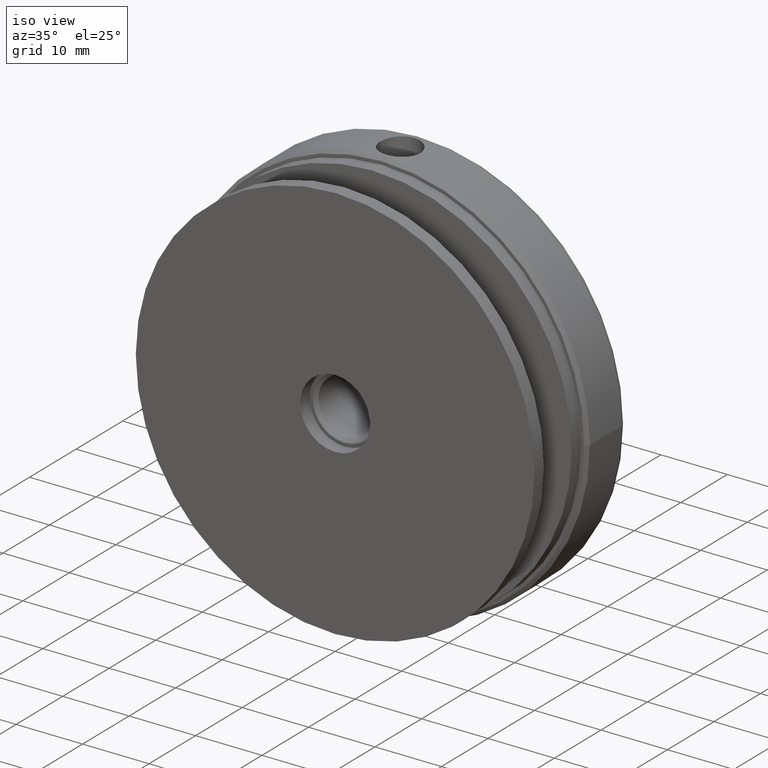
[diagram: clean part render]
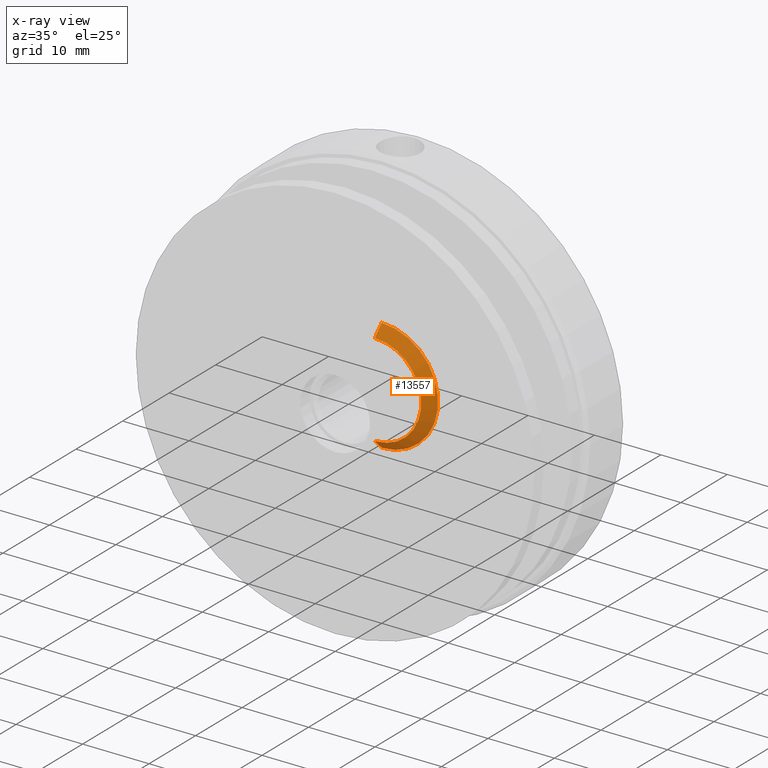
[diagram: x-ray — body ghosted, one internal face saturated and labeled with its STEP entity id]
A machine part, iso view, then the same camera in x-ray: the body is ghosted and one INTERNAL B-rep face — a face not visible from any outside direction — is saturated and labeled: STEP entity #13557.
In plain terms, the highlighted conical surface has half-angle 45 deg.
Its self-contained STEP definition (entity closure, byte-faithful):
#634 = AXIS2_PLACEMENT_3D ( 'NONE', #9433, #13001, #12940 ) ;
#799 = VERTEX_POINT ( 'NONE', #10715 ) ;
#1227 = ORIENTED_EDGE ( 'NONE', *, *, #12372, .T. ) ;
#2009 = ORIENTED_EDGE ( 'NONE', *, *, #6282, .F. ) ;
#2042 = DIRECTION ( 'NONE',  ( -0.000000000000000000, -1.000000000000000000, -0.000000000000000000 ) ) ;
#3079 = CIRCLE ( 'NONE', #634, 7.000000000000000000 ) ;
#3124 = LINE ( 'NONE', #7248, #12346 ) ;
#3462 = LINE ( 'NONE', #7723, #14751 ) ;
#3567 = AXIS2_PLACEMENT_3D ( 'NONE', #7913, #2042, #4232 ) ;
#3739 = DIRECTION ( 'NONE',  ( 8.659560562354922997E-17, -0.7071067811865483499, 0.7071067811865466846 ) ) ;
#4232 = DIRECTION ( 'NONE',  ( 0.000000000000000000, 0.000000000000000000, -1.000000000000000000 ) ) ;
#5332 = CIRCLE ( 'NONE', #11346, 8.499999999999992895 ) ;
#5810 = DIRECTION ( 'NONE',  ( 0.000000000000000000, 0.000000000000000000, 1.000000000000000000 ) ) ;
#6282 = EDGE_CURVE ( 'NONE', #6785, #11514, #3079, .T. ) ;
#6622 = DIRECTION ( 'NONE',  ( 0.000000000000000000, -0.7071067811865483499, -0.7071067811865466846 ) ) ;
#6734 = VERTEX_POINT ( 'NONE', #10357 ) ;
#6785 = VERTEX_POINT ( 'NONE', #15382 ) ;
#7248 = CARTESIAN_POINT ( 'NONE',  ( 1.040949779275249548E-15, 0.000000000000000000, 8.499999999999992895 ) ) ;
#7723 = CARTESIAN_POINT ( 'NONE',  ( 0.000000000000000000, 0.000000000000000000, -8.499999999999992895 ) ) ;
#7913 = CARTESIAN_POINT ( 'NONE',  ( 0.000000000000000000, 0.000000000000000000, 0.000000000000000000 ) ) ;
#9120 = CARTESIAN_POINT ( 'NONE',  ( 0.000000000000000000, 1.499999999999996891, -7.000000000000000000 ) ) ;
#9433 = CARTESIAN_POINT ( 'NONE',  ( 0.000000000000000000, 1.499999999999996891, 0.000000000000000000 ) ) ;
#10060 = EDGE_LOOP ( 'NONE', ( #2009, #1227, #11011, #13309 ) ) ;
#10357 = CARTESIAN_POINT ( 'NONE',  ( 1.040949779275249548E-15, 0.000000000000000000, 8.499999999999992895 ) ) ;
#10715 = CARTESIAN_POINT ( 'NONE',  ( 0.000000000000000000, 0.000000000000000000, -8.499999999999992895 ) ) ;
#11011 = ORIENTED_EDGE ( 'NONE', *, *, #13664, .F. ) ;
#11346 = AXIS2_PLACEMENT_3D ( 'NONE', #11835, #15446, #5810 ) ;
#11514 = VERTEX_POINT ( 'NONE', #9120 ) ;
#11586 = CONICAL_SURFACE ( 'NONE', #3567, 8.499999999999992895, 0.7853981633974471688 ) ;
#11835 = CARTESIAN_POINT ( 'NONE',  ( 0.000000000000000000, 0.000000000000000000, 0.000000000000000000 ) ) ;
#12346 = VECTOR ( 'NONE', #3739, 1000.000000000000000 ) ;
#12372 = EDGE_CURVE ( 'NONE', #6785, #6734, #3124, .T. ) ;
#12940 = DIRECTION ( 'NONE',  ( 0.000000000000000000, 0.000000000000000000, 1.000000000000000000 ) ) ;
#13001 = DIRECTION ( 'NONE',  ( -0.000000000000000000, -1.000000000000000000, -0.000000000000000000 ) ) ;
#13309 = ORIENTED_EDGE ( 'NONE', *, *, #14477, .F. ) ;
#13557 = ADVANCED_FACE ( 'NONE', ( #15524 ), #11586, .F. ) ;
#13664 = EDGE_CURVE ( 'NONE', #799, #6734, #5332, .T. ) ;
#14477 = EDGE_CURVE ( 'NONE', #11514, #799, #3462, .T. ) ;
#14751 = VECTOR ( 'NONE', #6622, 1000.000000000000000 ) ;
#15382 = CARTESIAN_POINT ( 'NONE',  ( 8.572527594031473190E-16, 1.499999999999996891, 7.000000000000000000 ) ) ;
#15446 = DIRECTION ( 'NONE',  ( 0.000000000000000000, 1.000000000000000000, 0.000000000000000000 ) ) ;
#15524 = FACE_OUTER_BOUND ( 'NONE', #10060, .T. ) ;